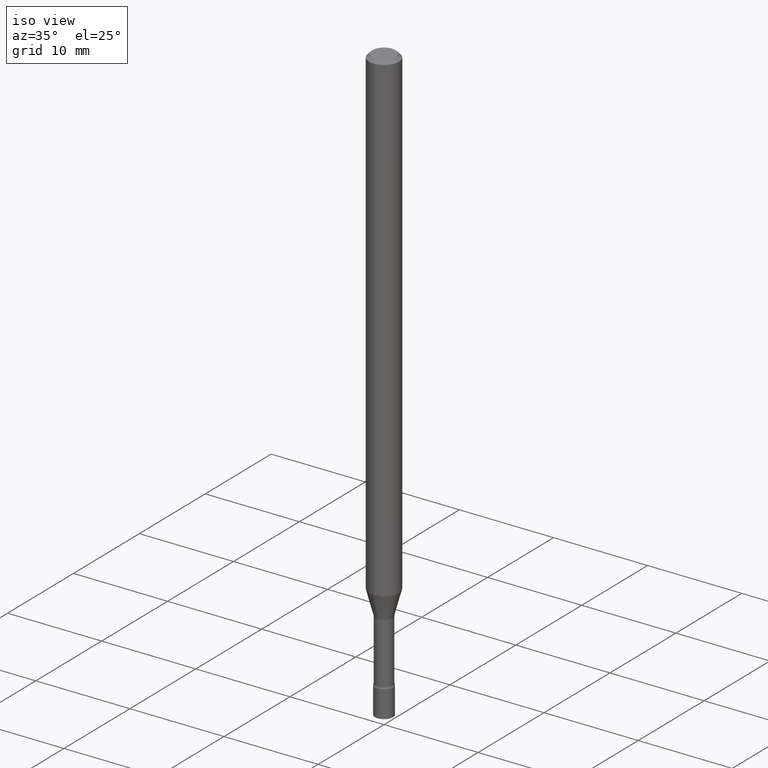
[diagram: clean part render]
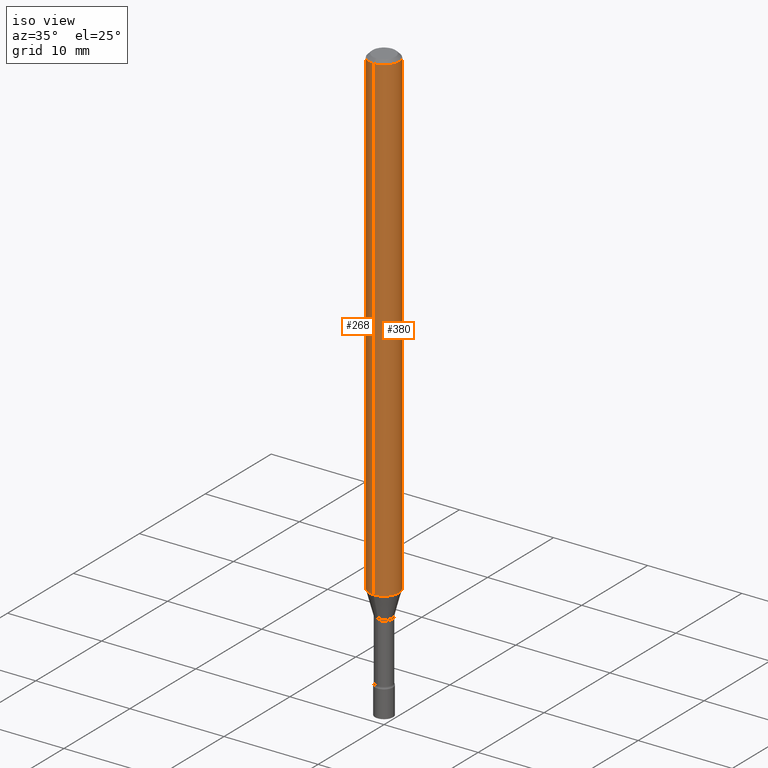
[diagram: same view with one multi-face feature highlighted, each face labeled with its STEP entity id]
A machine part, iso view. The highlighted faces form ONE feature: a constant-radius fillet chain: 2 tangent blend faces with common blend radius 1.5875 mm. The faces share edges in the B-rep.
Their STEP definitions:
[1] entity #380 (Cylinder):
#12 = ORIENTED_EDGE ( 'NONE', *, *, #213, .F. ) ;
#22 = DIRECTION ( 'NONE',  ( -6.982962677686265922E-15, -1.000000000000000000, 3.483106191921935554E-15 ) ) ;
#31 = VERTEX_POINT ( 'NONE', #290 ) ;
#36 = DIRECTION ( 'NONE',  ( -6.982962677686265922E-15, -1.000000000000000000, 4.370956789862821150E-15 ) ) ;
#40 = DIRECTION ( 'NONE',  ( -6.982962677686265922E-15, -1.000000000000000000, 3.491504032813937945E-15 ) ) ;
#47 = CARTESIAN_POINT ( 'NONE',  ( 4.440892098500625669E-16, 0.06250000000000000000, -2.182190020508711216E-16 ) ) ;
#78 = CARTESIAN_POINT ( 'NONE',  ( -4.364351673553916201E-16, -0.06250000000000000000, 2.182190020508711216E-16 ) ) ;
#80 = LINE ( 'NONE', #78, #307 ) ;
#82 = CIRCLE ( 'NONE', #198, 0.06250000000000000000 ) ;
#118 = DIRECTION ( 'NONE',  ( -2.445452959070031637E-29, 3.491504032813938339E-15, 1.000000000000000000 ) ) ;
#126 = CARTESIAN_POINT ( 'NONE',  ( 4.947888922700362317E-29, -7.064365750095378043E-15, -2.023301615493748429 ) ) ;
#127 = VERTEX_POINT ( 'NONE', #183 ) ;
#132 = AXIS2_PLACEMENT_3D ( 'NONE', #512, #357, #40 ) ;
#134 = AXIS2_PLACEMENT_3D ( 'NONE', #382, #418, #22 ) ;
#140 = ORIENTED_EDGE ( 'NONE', *, *, #410, .F. ) ;
#141 = CARTESIAN_POINT ( 'NONE',  ( 4.440892098501123144E-16, 0.06249999999999995143, -0.01500000000000024751 ) ) ;
#183 = CARTESIAN_POINT ( 'NONE',  ( -4.364351673553423163E-16, -0.06250000000000709155, -2.023301615493747985 ) ) ;
#189 = VERTEX_POINT ( 'NONE', #218 ) ;
#195 = CYLINDRICAL_SURFACE ( 'NONE', #132, 0.06250000000000000000 ) ;
#198 = AXIS2_PLACEMENT_3D ( 'NONE', #126, #430, #36 ) ;
#201 = EDGE_LOOP ( 'NONE', ( #251, #466, #12, #140 ) ) ;
#213 = EDGE_CURVE ( 'NONE', #31, #296, #483, .T. ) ;
#215 = VECTOR ( 'NONE', #304, 39.37007874015748143 ) ;
#218 = CARTESIAN_POINT ( 'NONE',  ( 4.440892098501118214E-16, 0.06249999999999290151, -2.023301615493748873 ) ) ;
#251 = ORIENTED_EDGE ( 'NONE', *, *, #482, .T. ) ;
#265 = LINE ( 'NONE', #47, #215 ) ;
#290 = CARTESIAN_POINT ( 'NONE',  ( -4.364351673553912750E-16, -0.06250000000000005551, -0.01499999999999981209 ) ) ;
#296 = VERTEX_POINT ( 'NONE', #141 ) ;
#304 = DIRECTION ( 'NONE',  ( -2.445452959070031637E-29, 3.491504032813938339E-15, 1.000000000000000000 ) ) ;
#307 = VECTOR ( 'NONE', #118, 39.37007874015748143 ) ;
#357 = DIRECTION ( 'NONE',  ( -2.445452959070031637E-29, 3.491504032813937945E-15, 1.000000000000000000 ) ) ;
#362 = EDGE_CURVE ( 'NONE', #189, #296, #265, .T. ) ;
#380 = ADVANCED_FACE ( 'NONE', ( #436 ), #195, .T. ) ;
#382 = CARTESIAN_POINT ( 'NONE',  ( 3.668179438605054672E-31, -5.237256049220917247E-17, -0.01500000000000003067 ) ) ;
#410 = EDGE_CURVE ( 'NONE', #127, #31, #80, .T. ) ;
#418 = DIRECTION ( 'NONE',  ( -2.445452959070031637E-29, 3.491504032813937945E-15, 1.000000000000000000 ) ) ;
#430 = DIRECTION ( 'NONE',  ( -2.445452959070031637E-29, 3.491504032813937945E-15, 1.000000000000000000 ) ) ;
#436 = FACE_OUTER_BOUND ( 'NONE', #201, .T. ) ;
#466 = ORIENTED_EDGE ( 'NONE', *, *, #362, .T. ) ;
#482 = EDGE_CURVE ( 'NONE', #127, #189, #82, .T. ) ;
#483 = CIRCLE ( 'NONE', #134, 0.06250000000000000000 ) ;
#512 = CARTESIAN_POINT ( 'NONE',  ( 0.000000000000000000, 0.000000000000000000, 0.000000000000000000 ) ) ;
[2] entity #268 (Cylinder):
#15 = ORIENTED_EDGE ( 'NONE', *, *, #362, .F. ) ;
#26 = DIRECTION ( 'NONE',  ( -6.982962677686265922E-15, -1.000000000000000000, 3.483106191921935554E-15 ) ) ;
#31 = VERTEX_POINT ( 'NONE', #290 ) ;
#32 = FACE_OUTER_BOUND ( 'NONE', #77, .T. ) ;
#44 = AXIS2_PLACEMENT_3D ( 'NONE', #376, #182, #26 ) ;
#47 = CARTESIAN_POINT ( 'NONE',  ( 4.440892098500625669E-16, 0.06250000000000000000, -2.182190020508711216E-16 ) ) ;
#75 = CIRCLE ( 'NONE', #44, 0.06250000000000000000 ) ;
#77 = EDGE_LOOP ( 'NONE', ( #15, #162, #424, #505 ) ) ;
#78 = CARTESIAN_POINT ( 'NONE',  ( -4.364351673553916201E-16, -0.06250000000000000000, 2.182190020508711216E-16 ) ) ;
#80 = LINE ( 'NONE', #78, #307 ) ;
#118 = DIRECTION ( 'NONE',  ( -2.445452959070031637E-29, 3.491504032813938339E-15, 1.000000000000000000 ) ) ;
#127 = VERTEX_POINT ( 'NONE', #183 ) ;
#141 = CARTESIAN_POINT ( 'NONE',  ( 4.440892098501123144E-16, 0.06249999999999995143, -0.01500000000000024751 ) ) ;
#146 = DIRECTION ( 'NONE',  ( -2.445452959070031637E-29, 3.491504032813937945E-15, 1.000000000000000000 ) ) ;
#162 = ORIENTED_EDGE ( 'NONE', *, *, #199, .T. ) ;
#182 = DIRECTION ( 'NONE',  ( -2.445452959070031637E-29, 3.491504032813937945E-15, 1.000000000000000000 ) ) ;
#183 = CARTESIAN_POINT ( 'NONE',  ( -4.364351673553423163E-16, -0.06250000000000709155, -2.023301615493747985 ) ) ;
#188 = DIRECTION ( 'NONE',  ( -6.982962677686265922E-15, -1.000000000000000000, 3.491504032813937945E-15 ) ) ;
#189 = VERTEX_POINT ( 'NONE', #218 ) ;
#199 = EDGE_CURVE ( 'NONE', #189, #127, #495, .T. ) ;
#215 = VECTOR ( 'NONE', #304, 39.37007874015748143 ) ;
#218 = CARTESIAN_POINT ( 'NONE',  ( 4.440892098501118214E-16, 0.06249999999999290151, -2.023301615493748873 ) ) ;
#227 = DIRECTION ( 'NONE',  ( -2.445452959070031637E-29, 3.491504032813937945E-15, 1.000000000000000000 ) ) ;
#237 = EDGE_CURVE ( 'NONE', #296, #31, #75, .T. ) ;
#265 = LINE ( 'NONE', #47, #215 ) ;
#268 = ADVANCED_FACE ( 'NONE', ( #32 ), #464, .T. ) ;
#272 = AXIS2_PLACEMENT_3D ( 'NONE', #339, #146, #462 ) ;
#290 = CARTESIAN_POINT ( 'NONE',  ( -4.364351673553912750E-16, -0.06250000000000005551, -0.01499999999999981209 ) ) ;
#296 = VERTEX_POINT ( 'NONE', #141 ) ;
#304 = DIRECTION ( 'NONE',  ( -2.445452959070031637E-29, 3.491504032813938339E-15, 1.000000000000000000 ) ) ;
#307 = VECTOR ( 'NONE', #118, 39.37007874015748143 ) ;
#337 = AXIS2_PLACEMENT_3D ( 'NONE', #497, #227, #188 ) ;
#339 = CARTESIAN_POINT ( 'NONE',  ( 4.947888922700362317E-29, -7.064365750095378043E-15, -2.023301615493748429 ) ) ;
#362 = EDGE_CURVE ( 'NONE', #189, #296, #265, .T. ) ;
#376 = CARTESIAN_POINT ( 'NONE',  ( 3.668179438605054672E-31, -5.237256049220917247E-17, -0.01500000000000003067 ) ) ;
#410 = EDGE_CURVE ( 'NONE', #127, #31, #80, .T. ) ;
#424 = ORIENTED_EDGE ( 'NONE', *, *, #410, .T. ) ;
#462 = DIRECTION ( 'NONE',  ( -6.982962677686265922E-15, -1.000000000000000000, 4.370956789862821150E-15 ) ) ;
#464 = CYLINDRICAL_SURFACE ( 'NONE', #337, 0.06250000000000000000 ) ;
#495 = CIRCLE ( 'NONE', #272, 0.06250000000000000000 ) ;
#497 = CARTESIAN_POINT ( 'NONE',  ( 0.000000000000000000, 0.000000000000000000, 0.000000000000000000 ) ) ;
#505 = ORIENTED_EDGE ( 'NONE', *, *, #237, .F. ) ;